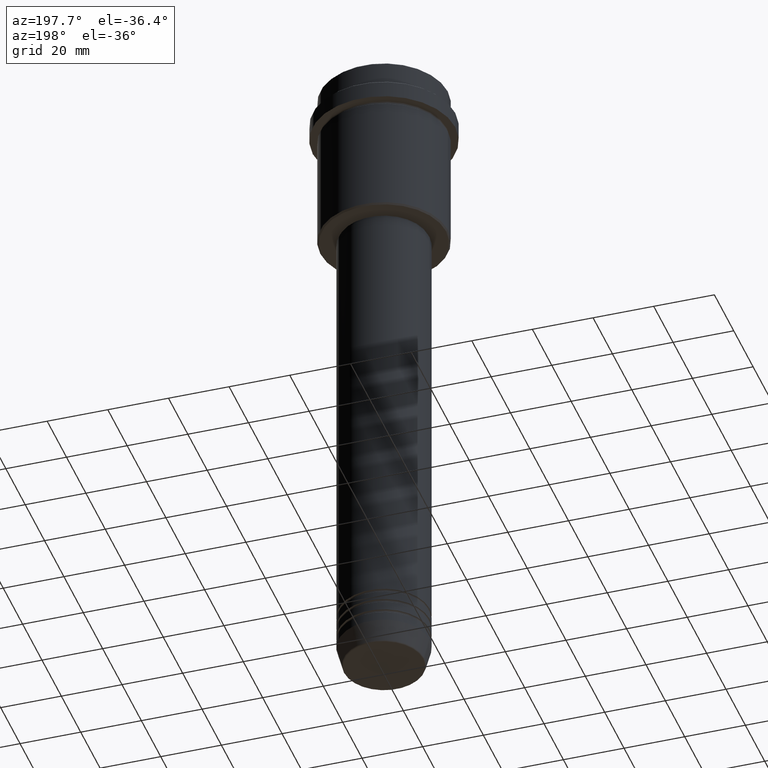
[diagram: clean part render]
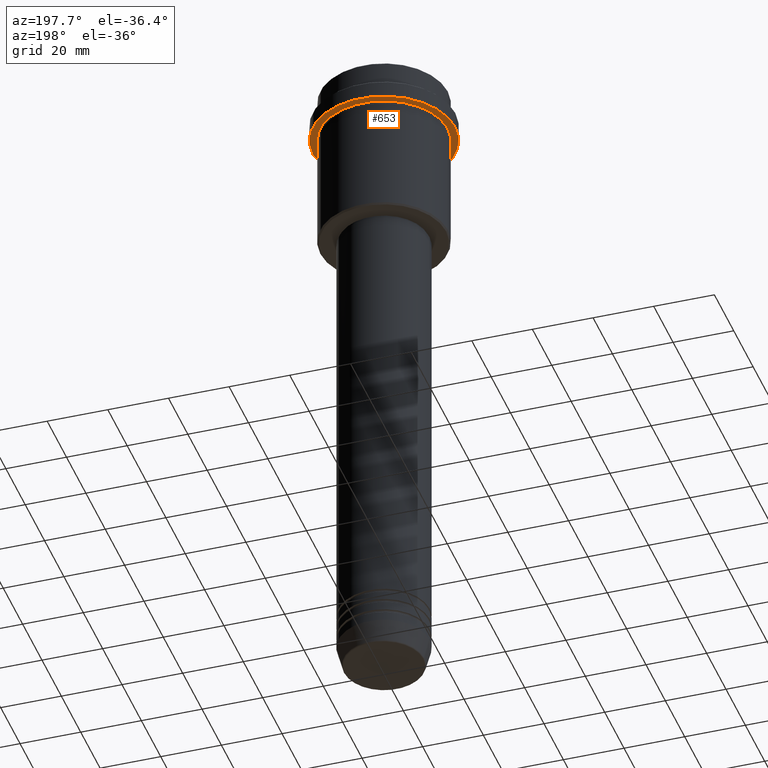
[diagram: same view with one face highlighted and labeled with its STEP entity id]
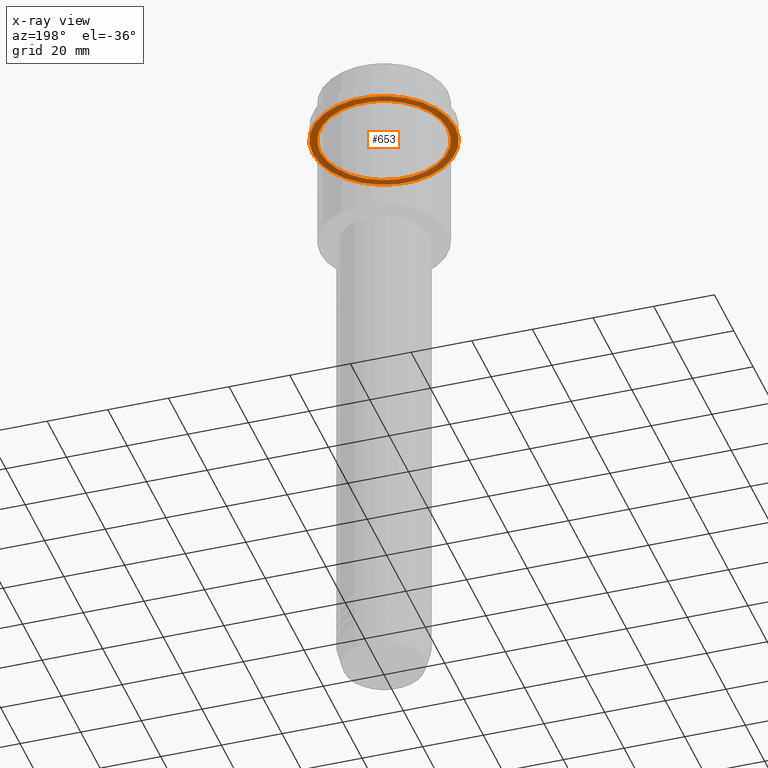
[diagram: x-ray of the same camera — body ghosted, the highlighted face saturated]
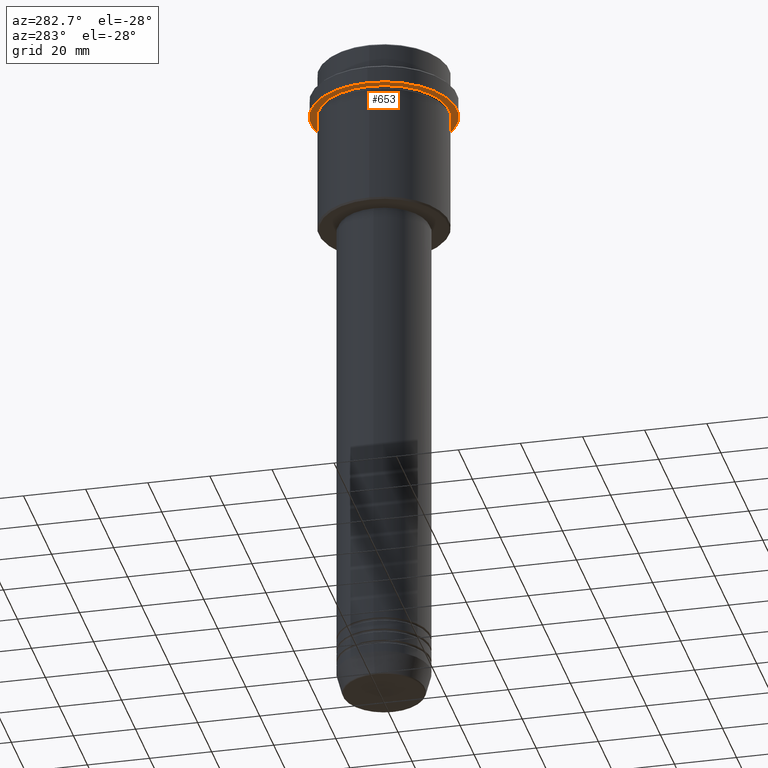
[diagram: same view with one face highlighted and labeled with its STEP entity id]
A machine part, auxiliary view. The second image highlights one B-rep face of the part: STEP entity #653.
The next image is the same camera in x-ray: the body ghosted, the highlighted face saturated — about 34% of this face is hidden behind the body in this view.
A second angle (auxiliary view) of the same face is appended — the face is thin or edge-on in the first view.
In plain terms, the highlighted planar face has unit normal (0, 0, -1).
Its self-contained STEP definition (entity closure, byte-faithful):
#27 = VERTEX_POINT ( 'NONE', #294 ) ;
#37 = EDGE_CURVE ( 'NONE', #27, #182, #1365, .T. ) ;
#43 = AXIS2_PLACEMENT_3D ( 'NONE', #298, #964, #629 ) ;
#63 = ORIENTED_EDGE ( 'NONE', *, *, #1152, .F. ) ;
#137 = CIRCLE ( 'NONE', #941, 23.50000000000000355 ) ;
#182 = VERTEX_POINT ( 'NONE', #976 ) ;
#191 = CARTESIAN_POINT ( 'NONE',  ( -23.50000000000000711, 2.877919977996281109E-15, -15.00000000000000000 ) ) ;
#194 = FACE_BOUND ( 'NONE', #1137, .T. ) ;
#197 = EDGE_CURVE ( 'NONE', #1013, #1242, #137, .T. ) ;
#218 = AXIS2_PLACEMENT_3D ( 'NONE', #1160, #726, #517 ) ;
#245 = CARTESIAN_POINT ( 'NONE',  ( 23.50000000000000355, 0.000000000000000000, -15.00000000000000000 ) ) ;
#278 = DIRECTION ( 'NONE',  ( -1.000000000000000000, 0.000000000000000000, 0.000000000000000000 ) ) ;
#294 = CARTESIAN_POINT ( 'NONE',  ( 20.99999999999999289, 2.571758278209440872E-15, -15.00000000000000178 ) ) ;
#298 = CARTESIAN_POINT ( 'NONE',  ( 0.000000000000000000, 23.50000000000000355, -15.00000000000000178 ) ) ;
#316 = DIRECTION ( 'NONE',  ( -0.000000000000000000, -0.000000000000000000, 1.000000000000000000 ) ) ;
#514 = DIRECTION ( 'NONE',  ( 1.000000000000000000, 0.000000000000000000, 0.000000000000000000 ) ) ;
#517 = DIRECTION ( 'NONE',  ( 1.000000000000000000, 0.000000000000000000, 0.000000000000000000 ) ) ;
#600 = EDGE_LOOP ( 'NONE', ( #63, #1376 ) ) ;
#602 = CIRCLE ( 'NONE', #1417, 20.99999999999999289 ) ;
#614 = DIRECTION ( 'NONE',  ( -0.000000000000000000, -0.000000000000000000, 1.000000000000000000 ) ) ;
#629 = DIRECTION ( 'NONE',  ( -1.000000000000000000, 0.000000000000000000, -0.000000000000000000 ) ) ;
#653 = ADVANCED_FACE ( 'NONE', ( #194, #1168 ), #721, .T. ) ;
#684 = CIRCLE ( 'NONE', #218, 23.50000000000000355 ) ;
#721 = PLANE ( 'NONE',  #43 ) ;
#722 = ORIENTED_EDGE ( 'NONE', *, *, #37, .T. ) ;
#726 = DIRECTION ( 'NONE',  ( -0.000000000000000000, -0.000000000000000000, 1.000000000000000000 ) ) ;
#818 = CARTESIAN_POINT ( 'NONE',  ( 0.000000000000000000, 0.000000000000000000, -15.00000000000000178 ) ) ;
#940 = CARTESIAN_POINT ( 'NONE',  ( 0.000000000000000000, 0.000000000000000000, -15.00000000000000178 ) ) ;
#941 = AXIS2_PLACEMENT_3D ( 'NONE', #1063, #316, #514 ) ;
#964 = DIRECTION ( 'NONE',  ( 0.000000000000000000, 0.000000000000000000, -1.000000000000000000 ) ) ;
#976 = CARTESIAN_POINT ( 'NONE',  ( -20.99999999999999289, 0.000000000000000000, -15.00000000000000178 ) ) ;
#1013 = VERTEX_POINT ( 'NONE', #191 ) ;
#1026 = DIRECTION ( 'NONE',  ( -0.000000000000000000, -0.000000000000000000, 1.000000000000000000 ) ) ;
#1063 = CARTESIAN_POINT ( 'NONE',  ( 0.000000000000000000, 0.000000000000000000, -15.00000000000000000 ) ) ;
#1104 = EDGE_CURVE ( 'NONE', #182, #27, #602, .T. ) ;
#1137 = EDGE_LOOP ( 'NONE', ( #1362, #722 ) ) ;
#1143 = AXIS2_PLACEMENT_3D ( 'NONE', #818, #1026, #278 ) ;
#1152 = EDGE_CURVE ( 'NONE', #1242, #1013, #684, .T. ) ;
#1160 = CARTESIAN_POINT ( 'NONE',  ( 0.000000000000000000, 0.000000000000000000, -15.00000000000000000 ) ) ;
#1168 = FACE_OUTER_BOUND ( 'NONE', #600, .T. ) ;
#1242 = VERTEX_POINT ( 'NONE', #245 ) ;
#1362 = ORIENTED_EDGE ( 'NONE', *, *, #1104, .T. ) ;
#1365 = CIRCLE ( 'NONE', #1143, 20.99999999999999289 ) ;
#1369 = DIRECTION ( 'NONE',  ( -1.000000000000000000, 0.000000000000000000, 0.000000000000000000 ) ) ;
#1376 = ORIENTED_EDGE ( 'NONE', *, *, #197, .F. ) ;
#1417 = AXIS2_PLACEMENT_3D ( 'NONE', #940, #614, #1369 ) ;